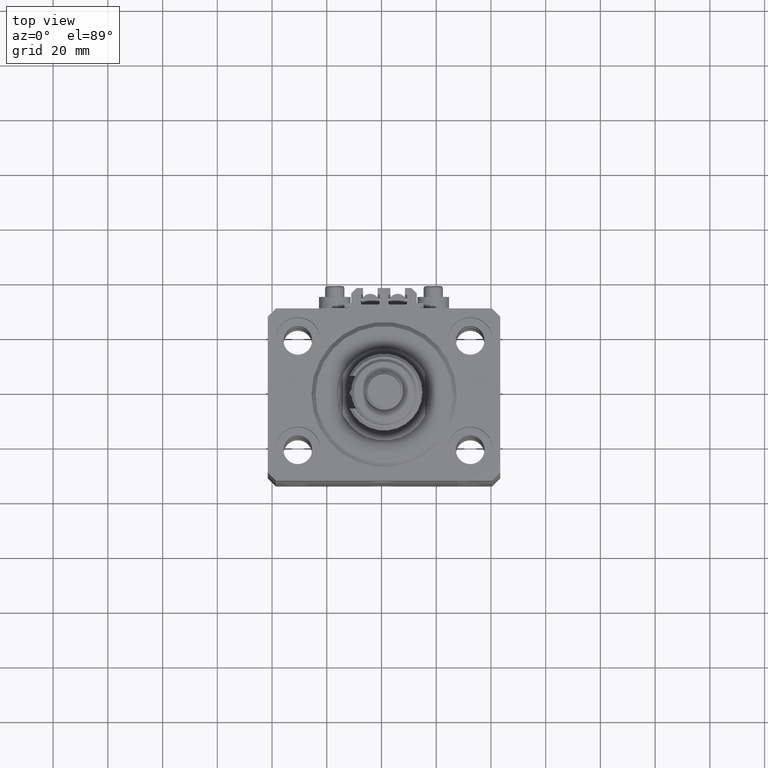
[diagram: clean part render]
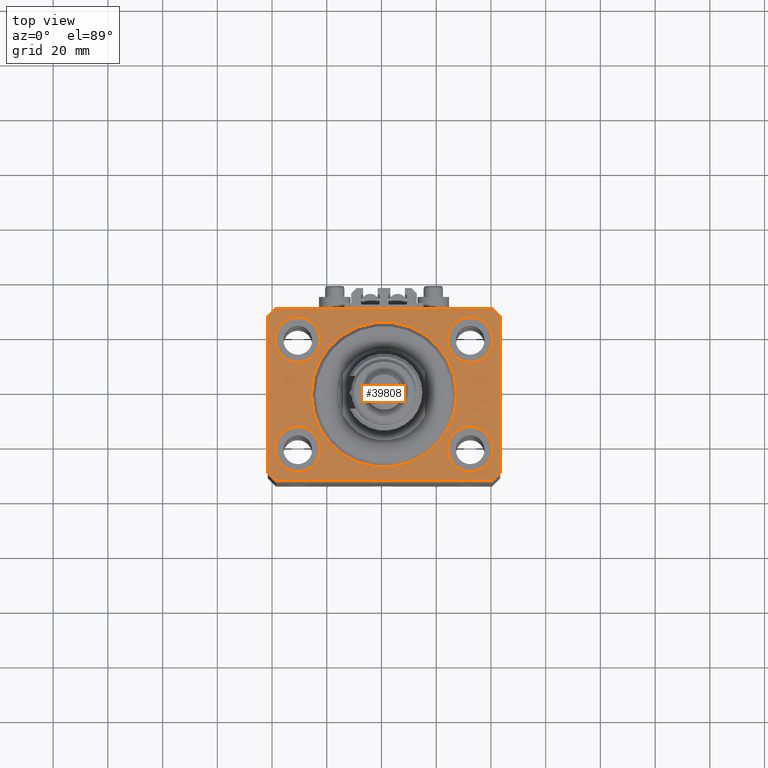
[diagram: same view with one face highlighted and labeled with its STEP entity id]
A machine part, top view. The second image highlights one B-rep face of the part: STEP entity #39808.
In plain terms, the highlighted planar face has unit normal (0, 0, 1).
Its self-contained STEP definition (entity closure, byte-faithful):
#205 = EDGE_CURVE ( 'NONE', #40634, #25093, #35167, .T. ) ;
#532 = CIRCLE ( 'NONE', #4680, 8.249999999999992895 ) ;
#711 = ORIENTED_EDGE ( 'NONE', *, *, #44345, .T. ) ;
#935 = AXIS2_PLACEMENT_3D ( 'NONE', #5920, #34175, #50150 ) ;
#1503 = VERTEX_POINT ( 'NONE', #36942 ) ;
#1642 = CARTESIAN_POINT ( 'NONE',  ( -42.50000000000000000, -28.50000000000000000, 0.000000000000000000 ) ) ;
#2005 = VERTEX_POINT ( 'NONE', #29559 ) ;
#2409 = DIRECTION ( 'NONE',  ( 1.000000000000000000, 0.000000000000000000, 0.000000000000000000 ) ) ;
#2777 = EDGE_LOOP ( 'NONE', ( #39052, #39958 ) ) ;
#3162 = DIRECTION ( 'NONE',  ( 0.7071067811865483499, 0.7071067811865466846, 0.000000000000000000 ) ) ;
#3779 = CIRCLE ( 'NONE', #37232, 8.250000000000000000 ) ;
#3781 = VERTEX_POINT ( 'NONE', #1642 ) ;
#3867 = AXIS2_PLACEMENT_3D ( 'NONE', #43860, #44122, #23946 ) ;
#4583 = ORIENTED_EDGE ( 'NONE', *, *, #28246, .F. ) ;
#4680 = AXIS2_PLACEMENT_3D ( 'NONE', #12376, #40133, #51656 ) ;
#4696 = CARTESIAN_POINT ( 'NONE',  ( 0.000000000000000000, 0.000000000000000000, 0.000000000000000000 ) ) ;
#5315 = VECTOR ( 'NONE', #7983, 1000.000000000000000 ) ;
#5442 = DIRECTION ( 'NONE',  ( 0.7071067811865471286, -0.7071067811865479058, 0.000000000000000000 ) ) ;
#5691 = CARTESIAN_POINT ( 'NONE',  ( -31.50000000000000000, -20.00000000000000000, 0.000000000000000000 ) ) ;
#5715 = CARTESIAN_POINT ( 'NONE',  ( -23.25000000000000000, -20.00000000000000000, 0.000000000000000000 ) ) ;
#5920 = CARTESIAN_POINT ( 'NONE',  ( -31.50000000000000000, 20.00000000000000000, 0.000000000000000000 ) ) ;
#6418 = VERTEX_POINT ( 'NONE', #10929 ) ;
#6496 = VECTOR ( 'NONE', #6977, 1000.000000000000000 ) ;
#6977 = DIRECTION ( 'NONE',  ( 8.886653596232072440E-15, 1.000000000000000000, 0.000000000000000000 ) ) ;
#7425 = CARTESIAN_POINT ( 'NONE',  ( 39.50000000000056843, 31.50000000000000000, 0.000000000000000000 ) ) ;
#7588 = CARTESIAN_POINT ( 'NONE',  ( 31.50000000000000000, -20.00000000000000000, 0.000000000000000000 ) ) ;
#7983 = DIRECTION ( 'NONE',  ( 1.000000000000000000, 0.000000000000000000, 0.000000000000000000 ) ) ;
#8082 = VERTEX_POINT ( 'NONE', #25341 ) ;
#8169 = LINE ( 'NONE', #40114, #18122 ) ;
#8449 = VECTOR ( 'NONE', #20270, 1000.000000000000000 ) ;
#8482 = CARTESIAN_POINT ( 'NONE',  ( 39.50000000000056843, 31.50000000000000000, 0.000000000000000000 ) ) ;
#8611 = VERTEX_POINT ( 'NONE', #26566 ) ;
#9242 = VERTEX_POINT ( 'NONE', #18407 ) ;
#9367 = DIRECTION ( 'NONE',  ( 1.000000000000000000, 0.000000000000000000, 0.000000000000000000 ) ) ;
#9377 = FACE_BOUND ( 'NONE', #9709, .T. ) ;
#9709 = EDGE_LOOP ( 'NONE', ( #46725, #20108 ) ) ;
#10785 = ORIENTED_EDGE ( 'NONE', *, *, #49360, .T. ) ;
#10811 = EDGE_CURVE ( 'NONE', #9242, #36343, #28684, .T. ) ;
#10929 = CARTESIAN_POINT ( 'NONE',  ( 23.25000000000000355, 20.00000000000001066, 0.000000000000000000 ) ) ;
#11349 = VECTOR ( 'NONE', #5442, 1000.000000000000000 ) ;
#11406 = CARTESIAN_POINT ( 'NONE',  ( 42.50000000000000711, -28.50000000000000355, 0.000000000000000000 ) ) ;
#11487 = VERTEX_POINT ( 'NONE', #5715 ) ;
#11504 = EDGE_CURVE ( 'NONE', #6418, #8611, #18706, .T. ) ;
#12265 = FACE_BOUND ( 'NONE', #49239, .T. ) ;
#12376 = CARTESIAN_POINT ( 'NONE',  ( 31.50000000000000000, -20.00000000000000000, 0.000000000000000000 ) ) ;
#12520 = DIRECTION ( 'NONE',  ( 0.000000000000000000, 0.000000000000000000, 1.000000000000000000 ) ) ;
#12556 = CARTESIAN_POINT ( 'NONE',  ( -31.50000000000000000, 20.00000000000000000, 0.000000000000000000 ) ) ;
#12879 = EDGE_CURVE ( 'NONE', #26194, #37531, #38765, .T. ) ;
#12973 = CARTESIAN_POINT ( 'NONE',  ( -23.25000000000000000, 20.00000000000000000, 0.000000000000000000 ) ) ;
#13069 = CIRCLE ( 'NONE', #3867, 26.50000000000000355 ) ;
#13503 = ORIENTED_EDGE ( 'NONE', *, *, #11504, .F. ) ;
#13937 = VERTEX_POINT ( 'NONE', #24379 ) ;
#14149 = DIRECTION ( 'NONE',  ( 0.000000000000000000, 0.000000000000000000, 1.000000000000000000 ) ) ;
#14626 = CIRCLE ( 'NONE', #18818, 8.250000000000000000 ) ;
#14632 = CARTESIAN_POINT ( 'NONE',  ( -39.50000000000000711, 31.50000000000000000, 0.000000000000000000 ) ) ;
#14828 = DIRECTION ( 'NONE',  ( 0.000000000000000000, 0.000000000000000000, 1.000000000000000000 ) ) ;
#15075 = CARTESIAN_POINT ( 'NONE',  ( 31.50000000000000000, 20.00000000000001066, 0.000000000000000000 ) ) ;
#15369 = EDGE_CURVE ( 'NONE', #11487, #31461, #14626, .T. ) ;
#15436 = DIRECTION ( 'NONE',  ( 0.000000000000000000, 0.000000000000000000, 1.000000000000000000 ) ) ;
#16171 = CARTESIAN_POINT ( 'NONE',  ( 26.50000000000000355, 0.000000000000000000, 0.000000000000000000 ) ) ;
#16452 = VECTOR ( 'NONE', #45823, 1000.000000000000000 ) ;
#16915 = EDGE_CURVE ( 'NONE', #8082, #1503, #532, .T. ) ;
#16933 = DIRECTION ( 'NONE',  ( 1.000000000000000000, 0.000000000000000000, 0.000000000000000000 ) ) ;
#17379 = EDGE_CURVE ( 'NONE', #37531, #26194, #13069, .T. ) ;
#18122 = VECTOR ( 'NONE', #48497, 1000.000000000000000 ) ;
#18407 = CARTESIAN_POINT ( 'NONE',  ( -39.50000000000000711, -31.50000000000000000, 0.000000000000000000 ) ) ;
#18706 = CIRCLE ( 'NONE', #29563, 8.249999999999992895 ) ;
#18818 = AXIS2_PLACEMENT_3D ( 'NONE', #5691, #33166, #16933 ) ;
#18931 = EDGE_CURVE ( 'NONE', #27918, #2005, #34267, .T. ) ;
#20108 = ORIENTED_EDGE ( 'NONE', *, *, #41192, .F. ) ;
#20270 = DIRECTION ( 'NONE',  ( -1.000000000000000000, 0.000000000000000000, 0.000000000000000000 ) ) ;
#20385 = FACE_BOUND ( 'NONE', #2777, .T. ) ;
#20742 = CARTESIAN_POINT ( 'NONE',  ( 42.50000000000000711, -28.50000000000000355, 0.000000000000000000 ) ) ;
#21267 = CARTESIAN_POINT ( 'NONE',  ( -31.50000000000000000, -20.00000000000000000, 0.000000000000000000 ) ) ;
#21404 = CARTESIAN_POINT ( 'NONE',  ( -39.75000000000000000, -20.00000000000000000, 0.000000000000000000 ) ) ;
#23037 = CARTESIAN_POINT ( 'NONE',  ( 39.50000000000000711, -31.50000000000000000, 0.000000000000000000 ) ) ;
#23451 = DIRECTION ( 'NONE',  ( 1.000000000000000000, 0.000000000000000000, 0.000000000000000000 ) ) ;
#23553 = DIRECTION ( 'NONE',  ( 0.000000000000000000, 0.000000000000000000, 1.000000000000000000 ) ) ;
#23653 = CARTESIAN_POINT ( 'NONE',  ( 0.000000000000000000, 0.000000000000000000, 0.000000000000000000 ) ) ;
#23946 = DIRECTION ( 'NONE',  ( 1.000000000000000000, 0.000000000000000000, 0.000000000000000000 ) ) ;
#24038 = VERTEX_POINT ( 'NONE', #12973 ) ;
#24278 = LINE ( 'NONE', #45233, #11349 ) ;
#24379 = CARTESIAN_POINT ( 'NONE',  ( -39.75000000000000000, 20.00000000000000000, 0.000000000000000000 ) ) ;
#25093 = VERTEX_POINT ( 'NONE', #7425 ) ;
#25341 = CARTESIAN_POINT ( 'NONE',  ( 23.25000000000000355, -20.00000000000000000, 0.000000000000000000 ) ) ;
#25410 = CARTESIAN_POINT ( 'NONE',  ( -39.50000000000000711, 31.50000000000000000, 0.000000000000000000 ) ) ;
#26194 = VERTEX_POINT ( 'NONE', #26914 ) ;
#26566 = CARTESIAN_POINT ( 'NONE',  ( 39.74999999999999289, 20.00000000000001066, 0.000000000000000000 ) ) ;
#26914 = CARTESIAN_POINT ( 'NONE',  ( -26.50000000000000355, 3.245314017740486554E-15, 0.000000000000000000 ) ) ;
#27591 = DIRECTION ( 'NONE',  ( 1.000000000000000000, 0.000000000000000000, 0.000000000000000000 ) ) ;
#27918 = VERTEX_POINT ( 'NONE', #25410 ) ;
#28133 = ORIENTED_EDGE ( 'NONE', *, *, #29272, .T. ) ;
#28246 = EDGE_CURVE ( 'NONE', #8611, #6418, #34301, .T. ) ;
#28252 = FACE_OUTER_BOUND ( 'NONE', #30815, .T. ) ;
#28505 = FACE_BOUND ( 'NONE', #48424, .T. ) ;
#28659 = LINE ( 'NONE', #8482, #8449 ) ;
#28684 = LINE ( 'NONE', #39936, #5315 ) ;
#29131 = EDGE_CURVE ( 'NONE', #13937, #24038, #33529, .T. ) ;
#29272 = EDGE_CURVE ( 'NONE', #25093, #27918, #28659, .T. ) ;
#29559 = CARTESIAN_POINT ( 'NONE',  ( -42.50000000000000000, 28.50000000000000000, 0.000000000000000000 ) ) ;
#29563 = AXIS2_PLACEMENT_3D ( 'NONE', #15075, #14828, #23451 ) ;
#30815 = EDGE_LOOP ( 'NONE', ( #28133, #43074, #711, #50145, #51655, #51159, #10785, #32821 ) ) ;
#31055 = LINE ( 'NONE', #11406, #6496 ) ;
#31125 = EDGE_CURVE ( 'NONE', #24038, #13937, #36090, .T. ) ;
#31166 = CARTESIAN_POINT ( 'NONE',  ( 39.50000000000000711, -31.50000000000000000, 0.000000000000000000 ) ) ;
#31461 = VERTEX_POINT ( 'NONE', #21404 ) ;
#31535 = CARTESIAN_POINT ( 'NONE',  ( 42.50000000000051870, 28.49999999999995381, 0.000000000000000000 ) ) ;
#32549 = DIRECTION ( 'NONE',  ( 0.000000000000000000, 0.000000000000000000, 1.000000000000000000 ) ) ;
#32667 = CARTESIAN_POINT ( 'NONE',  ( 31.50000000000000000, 20.00000000000001066, 0.000000000000000000 ) ) ;
#32821 = ORIENTED_EDGE ( 'NONE', *, *, #205, .T. ) ;
#32968 = AXIS2_PLACEMENT_3D ( 'NONE', #4696, #12520, #36346 ) ;
#33028 = ORIENTED_EDGE ( 'NONE', *, *, #29131, .F. ) ;
#33037 = DIRECTION ( 'NONE',  ( 1.000000000000000000, 0.000000000000000000, 0.000000000000000000 ) ) ;
#33166 = DIRECTION ( 'NONE',  ( 0.000000000000000000, 0.000000000000000000, 1.000000000000000000 ) ) ;
#33529 = CIRCLE ( 'NONE', #935, 8.250000000000000000 ) ;
#34175 = DIRECTION ( 'NONE',  ( 0.000000000000000000, 0.000000000000000000, 1.000000000000000000 ) ) ;
#34267 = LINE ( 'NONE', #14632, #16452 ) ;
#34301 = CIRCLE ( 'NONE', #42685, 8.249999999999992895 ) ;
#35167 = LINE ( 'NONE', #35690, #46952 ) ;
#35325 = DIRECTION ( 'NONE',  ( 1.000000000000000000, 0.000000000000000000, 0.000000000000000000 ) ) ;
#35690 = CARTESIAN_POINT ( 'NONE',  ( 42.50000000000051870, 28.49999999999995381, 0.000000000000000000 ) ) ;
#36090 = CIRCLE ( 'NONE', #48679, 8.250000000000000000 ) ;
#36343 = VERTEX_POINT ( 'NONE', #31166 ) ;
#36346 = DIRECTION ( 'NONE',  ( 1.000000000000000000, 0.000000000000000000, -0.000000000000000000 ) ) ;
#36616 = PLANE ( 'NONE',  #32968 ) ;
#36942 = CARTESIAN_POINT ( 'NONE',  ( 39.74999999999999289, -20.00000000000000000, 0.000000000000000000 ) ) ;
#37232 = AXIS2_PLACEMENT_3D ( 'NONE', #21267, #14149, #33037 ) ;
#37270 = CIRCLE ( 'NONE', #48141, 8.249999999999992895 ) ;
#37531 = VERTEX_POINT ( 'NONE', #16171 ) ;
#37634 = DIRECTION ( 'NONE',  ( 0.000000000000000000, 0.000000000000000000, 1.000000000000000000 ) ) ;
#38765 = CIRCLE ( 'NONE', #49667, 26.50000000000000355 ) ;
#39052 = ORIENTED_EDGE ( 'NONE', *, *, #17379, .F. ) ;
#39118 = DIRECTION ( 'NONE',  ( -0.7071067811865356934, 0.7071067811865594521, 0.000000000000000000 ) ) ;
#39382 = ORIENTED_EDGE ( 'NONE', *, *, #16915, .F. ) ;
#39808 = ADVANCED_FACE ( 'NONE', ( #9377, #28505, #12265, #40280, #20385, #28252 ), #36616, .T. ) ;
#39936 = CARTESIAN_POINT ( 'NONE',  ( -39.50000000000000711, -31.50000000000000000, 0.000000000000000000 ) ) ;
#39958 = ORIENTED_EDGE ( 'NONE', *, *, #12879, .F. ) ;
#40114 = CARTESIAN_POINT ( 'NONE',  ( -42.50000000000000000, 28.50000000000000000, 0.000000000000000000 ) ) ;
#40133 = DIRECTION ( 'NONE',  ( 0.000000000000000000, 0.000000000000000000, 1.000000000000000000 ) ) ;
#40280 = FACE_BOUND ( 'NONE', #42998, .T. ) ;
#40634 = VERTEX_POINT ( 'NONE', #31535 ) ;
#41074 = VERTEX_POINT ( 'NONE', #20742 ) ;
#41192 = EDGE_CURVE ( 'NONE', #31461, #11487, #3779, .T. ) ;
#41533 = ORIENTED_EDGE ( 'NONE', *, *, #31125, .F. ) ;
#42170 = EDGE_CURVE ( 'NONE', #1503, #8082, #37270, .T. ) ;
#42564 = EDGE_CURVE ( 'NONE', #3781, #9242, #24278, .T. ) ;
#42685 = AXIS2_PLACEMENT_3D ( 'NONE', #32667, #37634, #9367 ) ;
#42998 = EDGE_LOOP ( 'NONE', ( #41533, #33028 ) ) ;
#43074 = ORIENTED_EDGE ( 'NONE', *, *, #18931, .T. ) ;
#43207 = LINE ( 'NONE', #23037, #45757 ) ;
#43860 = CARTESIAN_POINT ( 'NONE',  ( 0.000000000000000000, 0.000000000000000000, 0.000000000000000000 ) ) ;
#44064 = ORIENTED_EDGE ( 'NONE', *, *, #42170, .F. ) ;
#44122 = DIRECTION ( 'NONE',  ( 0.000000000000000000, 0.000000000000000000, 1.000000000000000000 ) ) ;
#44345 = EDGE_CURVE ( 'NONE', #2005, #3781, #8169, .T. ) ;
#44586 = EDGE_CURVE ( 'NONE', #36343, #41074, #43207, .T. ) ;
#45233 = CARTESIAN_POINT ( 'NONE',  ( -42.50000000000000000, -28.50000000000000000, 0.000000000000000000 ) ) ;
#45757 = VECTOR ( 'NONE', #3162, 1000.000000000000000 ) ;
#45823 = DIRECTION ( 'NONE',  ( -0.7071067811865471286, -0.7071067811865479058, 0.000000000000000000 ) ) ;
#46725 = ORIENTED_EDGE ( 'NONE', *, *, #15369, .F. ) ;
#46952 = VECTOR ( 'NONE', #39118, 1000.000000000000114 ) ;
#48141 = AXIS2_PLACEMENT_3D ( 'NONE', #7588, #23553, #2409 ) ;
#48424 = EDGE_LOOP ( 'NONE', ( #44064, #39382 ) ) ;
#48497 = DIRECTION ( 'NONE',  ( 0.000000000000000000, -1.000000000000000000, 0.000000000000000000 ) ) ;
#48679 = AXIS2_PLACEMENT_3D ( 'NONE', #12556, #15436, #35325 ) ;
#49239 = EDGE_LOOP ( 'NONE', ( #4583, #13503 ) ) ;
#49360 = EDGE_CURVE ( 'NONE', #41074, #40634, #31055, .T. ) ;
#49667 = AXIS2_PLACEMENT_3D ( 'NONE', #23653, #32549, #27591 ) ;
#50145 = ORIENTED_EDGE ( 'NONE', *, *, #42564, .T. ) ;
#50150 = DIRECTION ( 'NONE',  ( 1.000000000000000000, 0.000000000000000000, 0.000000000000000000 ) ) ;
#51159 = ORIENTED_EDGE ( 'NONE', *, *, #44586, .T. ) ;
#51655 = ORIENTED_EDGE ( 'NONE', *, *, #10811, .T. ) ;
#51656 = DIRECTION ( 'NONE',  ( 1.000000000000000000, 0.000000000000000000, 0.000000000000000000 ) ) ;